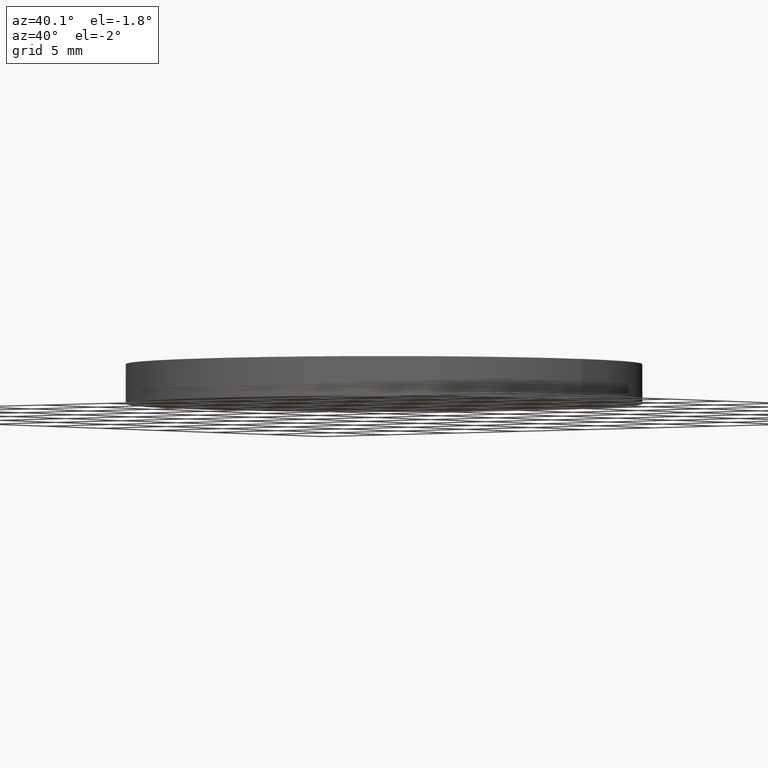
[diagram: clean part render]
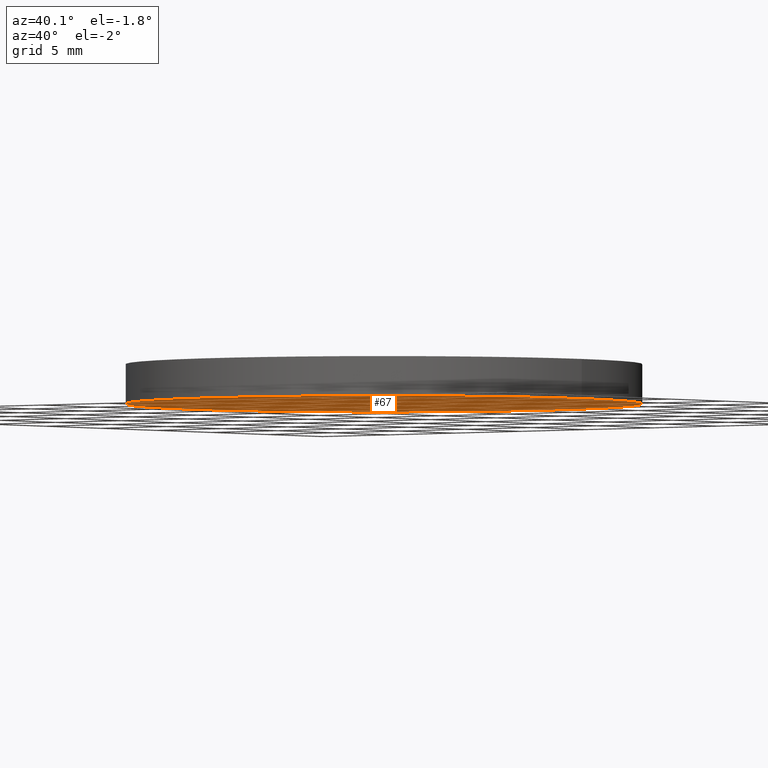
[diagram: same view with one face highlighted and labeled with its STEP entity id]
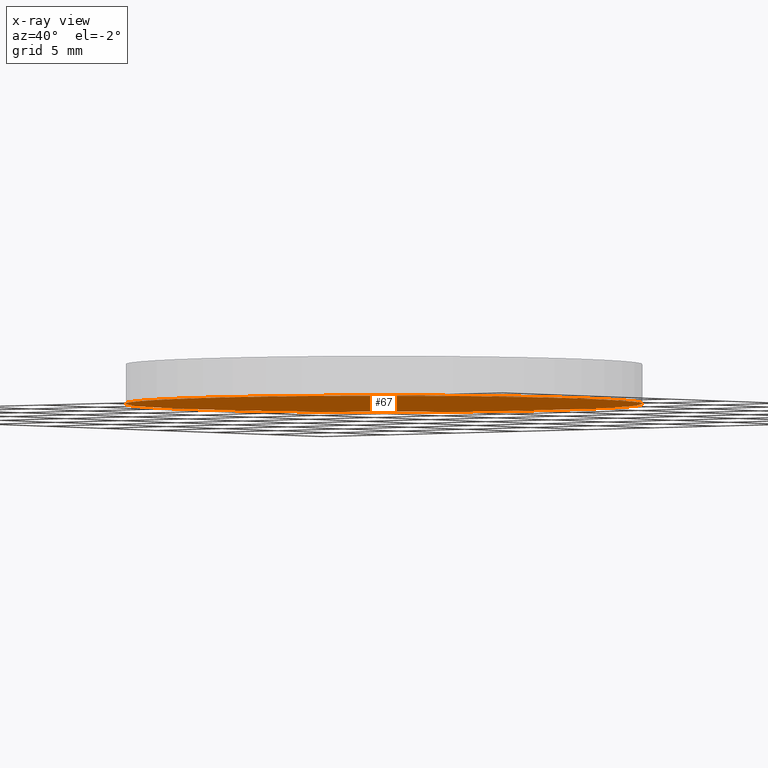
[diagram: x-ray of the same camera — body ghosted, the highlighted face saturated]
A machine part, auxiliary view. The second image highlights one B-rep face of the part: STEP entity #67.
The next image is the same camera in x-ray: the body ghosted, the highlighted face saturated — about 0% of this face is hidden behind the body in this view.
In plain terms, the highlighted planar face has unit normal (0, 0, 1).
Its self-contained STEP definition (entity closure, byte-faithful):
#13 = DIRECTION ( 'NONE',  ( 0.0000000000000000000, 0.0000000000000000000, 1.000000000000000000 ) ) ;
#21 = VERTEX_POINT ( 'NONE', #133 ) ;
#26 = DIRECTION ( 'NONE',  ( 0.0000000000000000000, 0.0000000000000000000, 1.000000000000000000 ) ) ;
#27 = EDGE_LOOP ( 'NONE', ( #74, #66 ) ) ;
#30 = CARTESIAN_POINT ( 'NONE',  ( 108.6149839422837000, 61.56324183452659300, 0.0000000000000000000 ) ) ;
#38 = CIRCLE ( 'NONE', #75, 15.00000000000000000 ) ;
#40 = DIRECTION ( 'NONE',  ( 1.000000000000000000, 0.0000000000000000000, -0.0000000000000000000 ) ) ;
#46 = CIRCLE ( 'NONE', #56, 15.00000000000000000 ) ;
#51 = DIRECTION ( 'NONE',  ( 0.0000000000000000000, 0.0000000000000000000, 1.000000000000000000 ) ) ;
#54 = CARTESIAN_POINT ( 'NONE',  ( 93.61498394228370000, 61.56324183452659300, 0.0000000000000000000 ) ) ;
#56 = AXIS2_PLACEMENT_3D ( 'NONE', #99, #26, #123 ) ;
#58 = EDGE_CURVE ( 'NONE', #101, #21, #46, .T. ) ;
#66 = ORIENTED_EDGE ( 'NONE', *, *, #77, .F. ) ;
#67 = ADVANCED_FACE ( 'NONE', ( #130 ), #89, .F. ) ;
#68 = CARTESIAN_POINT ( 'NONE',  ( 108.6149839422837000, 61.56324183452659300, 0.0000000000000000000 ) ) ;
#74 = ORIENTED_EDGE ( 'NONE', *, *, #58, .F. ) ;
#75 = AXIS2_PLACEMENT_3D ( 'NONE', #30, #13, #139 ) ;
#77 = EDGE_CURVE ( 'NONE', #21, #101, #38, .T. ) ;
#86 = AXIS2_PLACEMENT_3D ( 'NONE', #68, #51, #40 ) ;
#89 = PLANE ( 'NONE',  #86 ) ;
#99 = CARTESIAN_POINT ( 'NONE',  ( 108.6149839422837000, 61.56324183452659300, 0.0000000000000000000 ) ) ;
#101 = VERTEX_POINT ( 'NONE', #54 ) ;
#123 = DIRECTION ( 'NONE',  ( 1.000000000000000000, 0.0000000000000000000, 0.0000000000000000000 ) ) ;
#130 = FACE_OUTER_BOUND ( 'NONE', #27, .T. ) ;
#133 = CARTESIAN_POINT ( 'NONE',  ( 123.6149839422836900, 61.56324183452659300, 0.0000000000000000000 ) ) ;
#139 = DIRECTION ( 'NONE',  ( 1.000000000000000000, 0.0000000000000000000, 0.0000000000000000000 ) ) ;